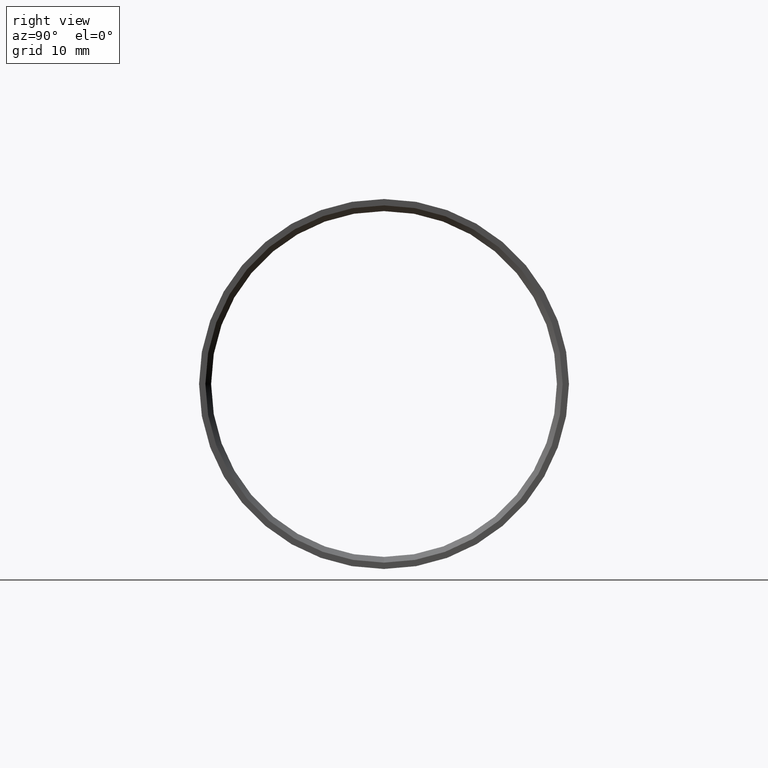
[diagram: clean part render]
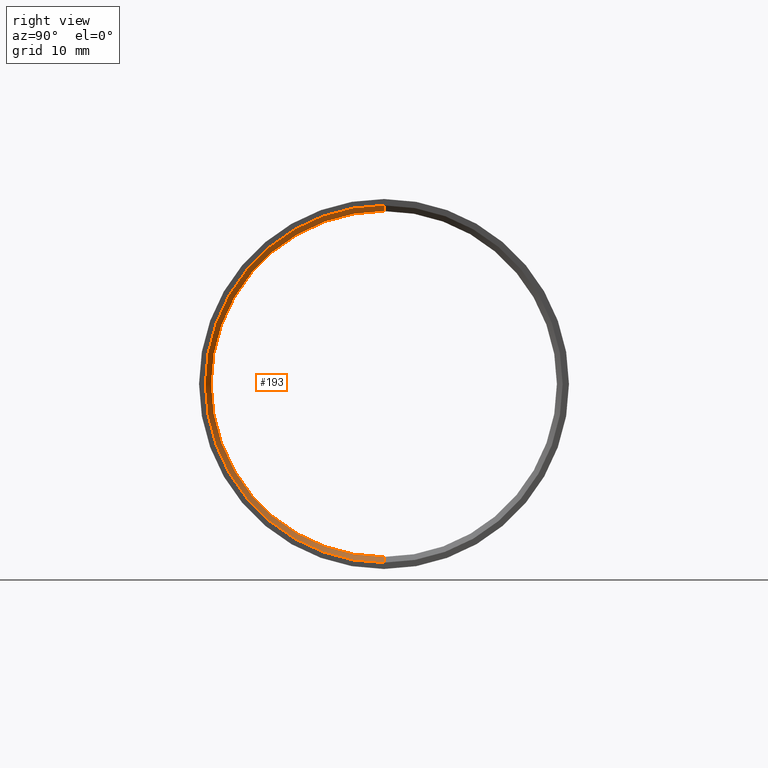
[diagram: same view with one face highlighted and labeled with its STEP entity id]
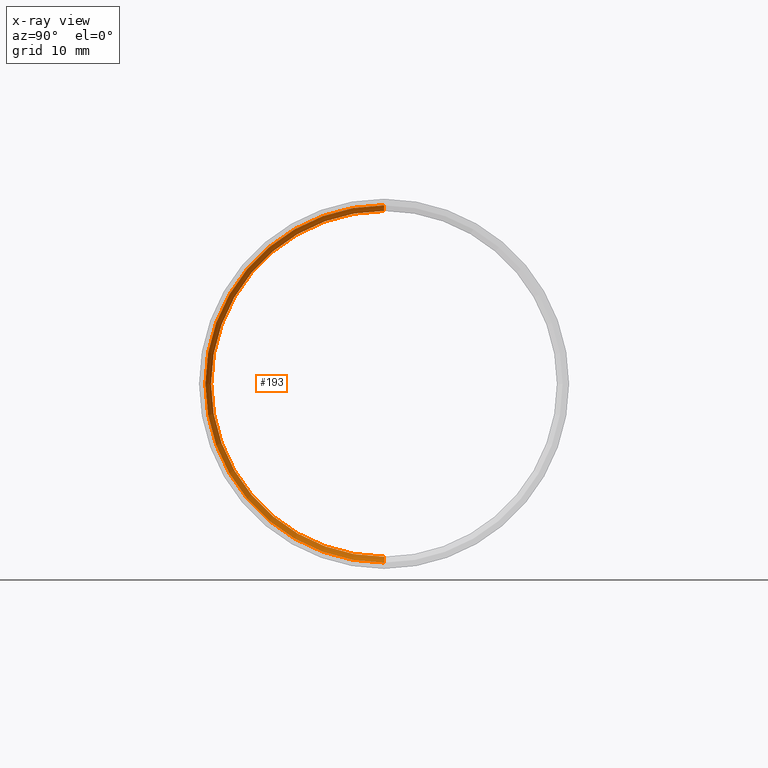
[diagram: x-ray of the same camera — body ghosted, the highlighted face saturated]
A machine part, right view. The second image highlights one B-rep face of the part: STEP entity #193.
The next image is the same camera in x-ray: the body ghosted, the highlighted face saturated — about 0% of this face is hidden behind the body in this view.
In plain terms, the highlighted conical surface has half-angle 45 deg.
Its self-contained STEP definition (entity closure, byte-faithful):
#3 = LINE ( 'NONE', #164, #132 ) ;
#15 = AXIS2_PLACEMENT_3D ( 'NONE', #419, #101, #484 ) ;
#33 = ORIENTED_EDGE ( 'NONE', *, *, #184, .F. ) ;
#48 = DIRECTION ( 'NONE',  ( 0.7071067811865474600, 0.0000000000000000000, -0.7071067811865474600 ) ) ;
#80 = ORIENTED_EDGE ( 'NONE', *, *, #360, .T. ) ;
#98 = CARTESIAN_POINT ( 'NONE',  ( 1.308500000000000400, 0.0000000000000000000, 0.9054999999999999700 ) ) ;
#101 = DIRECTION ( 'NONE',  ( -1.000000000000000000, -0.0000000000000000000, -0.0000000000000000000 ) ) ;
#132 = VECTOR ( 'NONE', #256, 39.37007874015748900 ) ;
#164 = CARTESIAN_POINT ( 'NONE',  ( 1.338500000000000000, 1.145657080602348100E-016, 0.9354999999999993300 ) ) ;
#176 = ORIENTED_EDGE ( 'NONE', *, *, #399, .F. ) ;
#184 = EDGE_CURVE ( 'NONE', #426, #196, #192, .T. ) ;
#192 = LINE ( 'NONE', #630, #330 ) ;
#193 = ADVANCED_FACE ( 'NONE', ( #640 ), #643, .F. ) ;
#196 = VERTEX_POINT ( 'NONE', #420 ) ;
#197 = CIRCLE ( 'NONE', #15, 0.9354999999999993300 ) ;
#201 = DIRECTION ( 'NONE',  ( 1.000000000000000000, -0.0000000000000000000, -0.0000000000000000000 ) ) ;
#205 = DIRECTION ( 'NONE',  ( 1.000000000000000000, -0.0000000000000000000, -0.0000000000000000000 ) ) ;
#256 = DIRECTION ( 'NONE',  ( 0.7071067811865474600, 8.659560562354932900E-017, 0.7071067811865474600 ) ) ;
#308 = VERTEX_POINT ( 'NONE', #385 ) ;
#330 = VECTOR ( 'NONE', #48, 39.37007874015748900 ) ;
#349 = CIRCLE ( 'NONE', #463, 0.9054999999999999700 ) ;
#360 = EDGE_CURVE ( 'NONE', #450, #308, #3, .T. ) ;
#385 = CARTESIAN_POINT ( 'NONE',  ( 1.338500000000000000, 1.145657080602348100E-016, 0.9354999999999993300 ) ) ;
#399 = EDGE_CURVE ( 'NONE', #450, #426, #349, .T. ) ;
#404 = CARTESIAN_POINT ( 'NONE',  ( 1.308500000000000400, 1.108917676627928300E-016, -0.9054999999999999700 ) ) ;
#419 = CARTESIAN_POINT ( 'NONE',  ( 1.338500000000000000, 0.0000000000000000000, 0.0000000000000000000 ) ) ;
#420 = CARTESIAN_POINT ( 'NONE',  ( 1.338500000000000000, 0.0000000000000000000, -0.9354999999999993300 ) ) ;
#426 = VERTEX_POINT ( 'NONE', #404 ) ;
#450 = VERTEX_POINT ( 'NONE', #98 ) ;
#463 = AXIS2_PLACEMENT_3D ( 'NONE', #524, #201, #585 ) ;
#467 = EDGE_CURVE ( 'NONE', #196, #308, #197, .T. ) ;
#484 = DIRECTION ( 'NONE',  ( 0.0000000000000000000, 0.0000000000000000000, 1.000000000000000000 ) ) ;
#524 = CARTESIAN_POINT ( 'NONE',  ( 1.308500000000000400, 0.0000000000000000000, 0.0000000000000000000 ) ) ;
#545 = EDGE_LOOP ( 'NONE', ( #176, #80, #601, #33 ) ) ;
#553 = AXIS2_PLACEMENT_3D ( 'NONE', #589, #205, #648 ) ;
#585 = DIRECTION ( 'NONE',  ( 0.0000000000000000000, 0.0000000000000000000, 1.000000000000000000 ) ) ;
#589 = CARTESIAN_POINT ( 'NONE',  ( 1.338500000000000000, 0.0000000000000000000, 0.0000000000000000000 ) ) ;
#601 = ORIENTED_EDGE ( 'NONE', *, *, #467, .F. ) ;
#630 = CARTESIAN_POINT ( 'NONE',  ( 1.338500000000000000, 0.0000000000000000000, -0.9354999999999993300 ) ) ;
#640 = FACE_OUTER_BOUND ( 'NONE', #545, .T. ) ;
#643 = CONICAL_SURFACE ( 'NONE', #553, 0.9354999999999993300, 0.7853981633974482800 ) ;
#648 = DIRECTION ( 'NONE',  ( 0.0000000000000000000, 0.0000000000000000000, -1.000000000000000000 ) ) ;